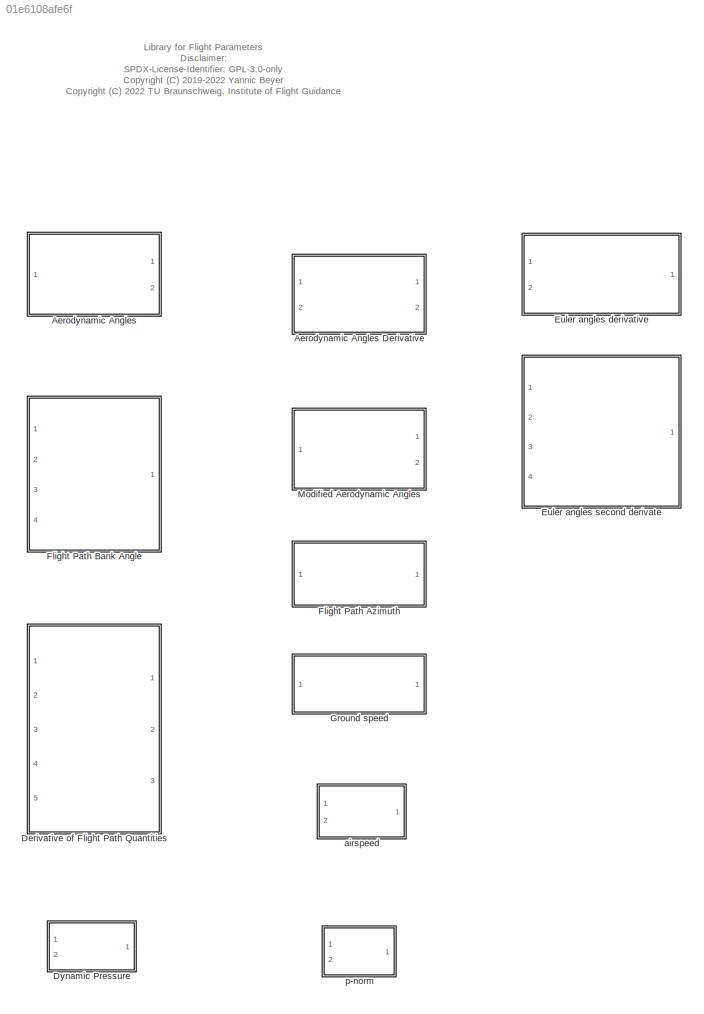
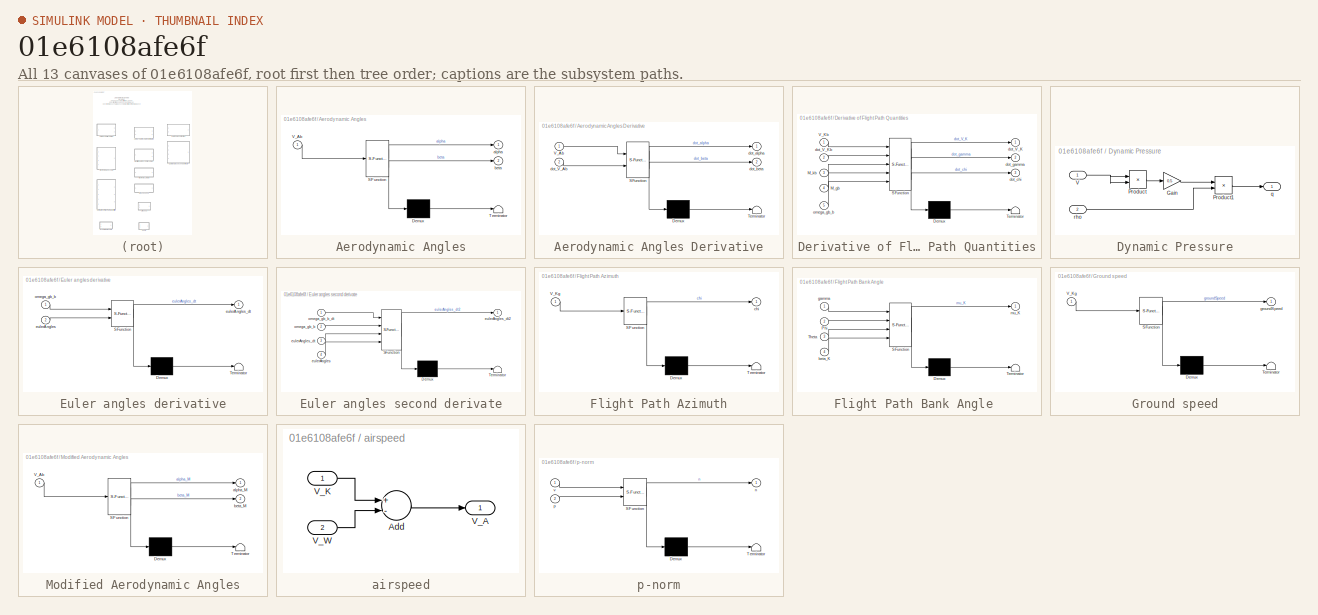
[diagram: thumbnail index - all 13 canvases of the model, root first then tree order]
MODEL slx_01e6108afe6f
KIND library
CONFIG AbsTol = auto
CONFIG EnableMultiTasking = off
CONFIG FixedStep = auto
CONFIG MaxStep = auto
CONFIG MinStep = auto
CONFIG RelTol = 1e-3
CONFIG SampleTimeConstraint = Unconstrained
CONFIG Solver = VariableStepAuto
CONFIG SolverName = VariableStepAuto
CONFIG StartTime = 0.0
CONFIG StopTime = 10.0
BLOCK [SubSystem] Aerodynamic Angles
  ErrorFcn = Stateflow.Translate.translate
  PermitHierarchicalResolution = ExplicitOnly
  Ports = [1, 2]
  RequestExecContextInheritance = off
  SFBlockType = MATLAB Function
  TreatAsAtomicUnit = on
BLOCK [SubSystem] Aerodynamic Angles Derivative
  ErrorFcn = Stateflow.Translate.translate
  PermitHierarchicalResolution = ExplicitOnly
  Ports = [2, 2]
  RequestExecContextInheritance = off
  SFBlockType = MATLAB Function
  TreatAsAtomicUnit = on
BLOCK [Demux] Aerodynamic Angles Derivative/ Demux 
  Outputs = 1
  Ports = [1, 1]
BLOCK [S-Function] Aerodynamic Angles Derivative/ SFunction 
  EnableBusSupport = off
  FunctionName = sf_sfun
  PortCounts = [2 3]
  Ports = [2, 3]
  SFcnIsStateOwnerBlock = off
  SFunctionDeploymentMode = off
  Tag = Stateflow S-Function flight_parameters_lib 1
BLOCK [Terminator] Aerodynamic Angles Derivative/ Terminator 
BLOCK [Inport] Aerodynamic Angles Derivative/V_Ab
  IconDisplay = Port number
BLOCK [Inport] Aerodynamic Angles Derivative/dot_V_Ab
  IconDisplay = Port number
  Port = 2
BLOCK [Outport] Aerodynamic Angles Derivative/dot_alpha
  IconDisplay = Port number
BLOCK [Outport] Aerodynamic Angles Derivative/dot_beta
  IconDisplay = Port number
  Port = 2
BLOCK [Demux] Aerodynamic Angles/ Demux 
  Outputs = 1
  Ports = [1, 1]
BLOCK [S-Function] Aerodynamic Angles/ SFunction 
  EnableBusSupport = off
  FunctionName = sf_sfun
  PortCounts = [1 3]
  Ports = [1, 3]
  SFcnIsStateOwnerBlock = off
  SFunctionDeploymentMode = off
  Tag = Stateflow S-Function flight_parameters_lib 21
BLOCK [Terminator] Aerodynamic Angles/ Terminator 
BLOCK [Inport] Aerodynamic Angles/V_Ab
  IconDisplay = Port number
BLOCK [Outport] Aerodynamic Angles/alpha
  IconDisplay = Port number
BLOCK [Outport] Aerodynamic Angles/beta
  IconDisplay = Port number
  Port = 2
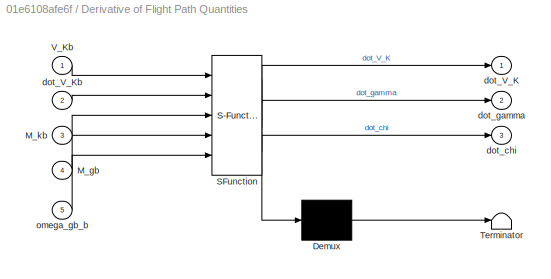
BLOCK [SubSystem] Derivative of Flight Path Quantities
  ErrorFcn = Stateflow.Translate.translate
  PermitHierarchicalResolution = ExplicitOnly
  Ports = [5, 3]
  RequestExecContextInheritance = off
  SFBlockType = MATLAB Function
  TreatAsAtomicUnit = on
BLOCK [Demux] Derivative of Flight Path Quantities/ Demux 
  Outputs = 1
  Ports = [1, 1]
BLOCK [S-Function] Derivative of Flight Path Quantities/ SFunction 
  EnableBusSupport = off
  FunctionName = sf_sfun
  PortCounts = [5 4]
  Ports = [5, 4]
  SFcnIsStateOwnerBlock = off
  SFunctionDeploymentMode = off
  Tag = Stateflow S-Function flight_parameters_lib 2
BLOCK [Terminator] Derivative of Flight Path Quantities/ Terminator 
BLOCK [Inport] Derivative of Flight Path Quantities/M_gb
  IconDisplay = Port number
  Port = 4
BLOCK [Inport] Derivative of Flight Path Quantities/M_kb
  IconDisplay = Port number
  Port = 3
BLOCK [Inport] Derivative of Flight Path Quantities/V_Kb
  IconDisplay = Port number
BLOCK [Outport] Derivative of Flight Path Quantities/dot_V_K
  IconDisplay = Port number
BLOCK [Inport] Derivative of Flight Path Quantities/dot_V_Kb
  IconDisplay = Port number
  Port = 2
BLOCK [Outport] Derivative of Flight Path Quantities/dot_chi
  IconDisplay = Port number
  Port = 3
BLOCK [Outport] Derivative of Flight Path Quantities/dot_gamma
  IconDisplay = Port number
  Port = 2
BLOCK [Inport] Derivative of Flight Path Quantities/omega_gb_b
  IconDisplay = Port number
  Port = 5
BLOCK [SubSystem] Dynamic Pressure
  Ports = [2, 1]
  RequestExecContextInheritance = off
BLOCK [Gain] Dynamic Pressure/Gain
  Gain = 0.5
  OutDataTypeStr = Inherit: Inherit via internal rule
  ParamDataTypeStr = Inherit: Inherit via internal rule
  SaturateOnIntegerOverflow = off
BLOCK [Product] Dynamic Pressure/Product
  InputSameDT = off
  OutDataTypeStr = Inherit: Inherit via internal rule
  Ports = [2, 1]
  RndMeth = Floor
  SaturateOnIntegerOverflow = off
BLOCK [Product] Dynamic Pressure/Product1
  InputSameDT = off
  OutDataTypeStr = Inherit: Inherit via internal rule
  Ports = [2, 1]
  RndMeth = Floor
  SaturateOnIntegerOverflow = off
BLOCK [Inport] Dynamic Pressure/V
  IconDisplay = Port number
BLOCK [Outport] Dynamic Pressure/q
  IconDisplay = Port number
BLOCK [Inport] Dynamic Pressure/rho
  IconDisplay = Port number
  Port = 2
BLOCK [SubSystem] Euler angles derivative
  ErrorFcn = Stateflow.Translate.translate
  PermitHierarchicalResolution = ExplicitOnly
  Ports = [2, 1]
  RequestExecContextInheritance = off
  SFBlockType = MATLAB Function
  TreatAsAtomicUnit = on
BLOCK [Demux] Euler angles derivative/ Demux 
  Outputs = 1
  Ports = [1, 1]
BLOCK [S-Function] Euler angles derivative/ SFunction 
  EnableBusSupport = off
  FunctionName = sf_sfun
  PortCounts = [2 2]
  Ports = [2, 2]
  SFcnIsStateOwnerBlock = off
  SFunctionDeploymentMode = off
  Tag = Stateflow S-Function flight_parameters_lib 7
BLOCK [Terminator] Euler angles derivative/ Terminator 
BLOCK [Inport] Euler angles derivative/eulerAngles
  IconDisplay = Port number
  Port = 2
BLOCK [Outport] Euler angles derivative/eulerAngles_dt
  IconDisplay = Port number
BLOCK [Inport] Euler angles derivative/omega_gb_b
  IconDisplay = Port number
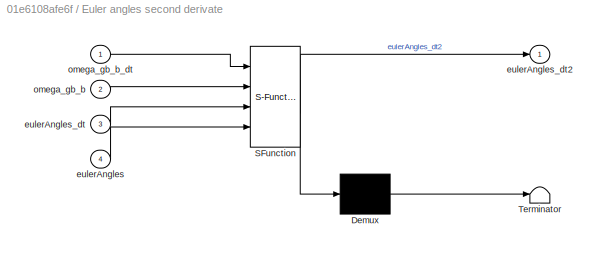
BLOCK [SubSystem] Euler angles second derivate
  ErrorFcn = Stateflow.Translate.translate
  PermitHierarchicalResolution = ExplicitOnly
  Ports = [4, 1]
  RequestExecContextInheritance = off
  SFBlockType = MATLAB Function
  TreatAsAtomicUnit = on
BLOCK [Demux] Euler angles second derivate/ Demux 
  Outputs = 1
  Ports = [1, 1]
BLOCK [S-Function] Euler angles second derivate/ SFunction 
  EnableBusSupport = off
  FunctionName = sf_sfun
  PortCounts = [4 2]
  Ports = [4, 2]
  SFcnIsStateOwnerBlock = off
  SFunctionDeploymentMode = off
  Tag = Stateflow S-Function flight_parameters_lib 8
BLOCK [Terminator] Euler angles second derivate/ Terminator 
BLOCK [Inport] Euler angles second derivate/eulerAngles
  IconDisplay = Port number
  Port = 4
BLOCK [Inport] Euler angles second derivate/eulerAngles_dt
  IconDisplay = Port number
  Port = 3
BLOCK [Outport] Euler angles second derivate/eulerAngles_dt2
  IconDisplay = Port number
BLOCK [Inport] Euler angles second derivate/omega_gb_b
  IconDisplay = Port number
  Port = 2
BLOCK [Inport] Euler angles second derivate/omega_gb_b_dt
  IconDisplay = Port number
BLOCK [SubSystem] Flight Path Azimuth
  ErrorFcn = Stateflow.Translate.translate
  PermitHierarchicalResolution = ExplicitOnly
  Ports = [1, 1]
  RequestExecContextInheritance = off
  SFBlockType = MATLAB Function
  TreatAsAtomicUnit = on
BLOCK [Demux] Flight Path Azimuth/ Demux 
  Outputs = 1
  Ports = [1, 1]
BLOCK [S-Function] Flight Path Azimuth/ SFunction 
  EnableBusSupport = off
  FunctionName = sf_sfun
  PortCounts = [1 2]
  Ports = [1, 2]
  SFcnIsStateOwnerBlock = off
  SFunctionDeploymentMode = off
  Tag = Stateflow S-Function flight_parameters_lib 5
BLOCK [Terminator] Flight Path Azimuth/ Terminator 
BLOCK [Inport] Flight Path Azimuth/V_Kg
  IconDisplay = Port number
BLOCK [Outport] Flight Path Azimuth/chi
  IconDisplay = Port number
BLOCK [SubSystem] Flight Path Bank Angle 
  ErrorFcn = Stateflow.Translate.translate
  PermitHierarchicalResolution = ExplicitOnly
  Ports = [4, 1]
  RequestExecContextInheritance = off
  SFBlockType = MATLAB Function
  TreatAsAtomicUnit = on
BLOCK [Demux] Flight Path Bank Angle / Demux 
  Outputs = 1
  Ports = [1, 1]
BLOCK [S-Function] Flight Path Bank Angle / SFunction 
  EnableBusSupport = off
  FunctionName = sf_sfun
  PortCounts = [4 2]
  Ports = [4, 2]
  SFcnIsStateOwnerBlock = off
  SFunctionDeploymentMode = off
  Tag = Stateflow S-Function flight_parameters_lib 23
BLOCK [Terminator] Flight Path Bank Angle / Terminator 
BLOCK [Inport] Flight Path Bank Angle /Phi
  IconDisplay = Port number
  Port = 2
BLOCK [Inport] Flight Path Bank Angle /Theta
  IconDisplay = Port number
  Port = 3
BLOCK [Inport] Flight Path Bank Angle /beta_K
  IconDisplay = Port number
  Port = 4
BLOCK [Inport] Flight Path Bank Angle /gamma
  IconDisplay = Port number
BLOCK [Outport] Flight Path Bank Angle /mu_K
  IconDisplay = Port number
BLOCK [SubSystem] Ground speed
  ErrorFcn = Stateflow.Translate.translate
  PermitHierarchicalResolution = ExplicitOnly
  Ports = [1, 1]
  RequestExecContextInheritance = off
  SFBlockType = MATLAB Function
  TreatAsAtomicUnit = on
BLOCK [Demux] Ground speed/ Demux 
  Outputs = 1
  Ports = [1, 1]
BLOCK [S-Function] Ground speed/ SFunction 
  EnableBusSupport = off
  FunctionName = sf_sfun
  PortCounts = [1 2]
  Ports = [1, 2]
  SFcnIsStateOwnerBlock = off
  SFunctionDeploymentMode = off
  Tag = Stateflow S-Function flight_parameters_lib 6
BLOCK [Terminator] Ground speed/ Terminator 
BLOCK [Inport] Ground speed/V_Kg
  IconDisplay = Port number
BLOCK [Outport] Ground speed/groundSpeed
  IconDisplay = Port number
BLOCK [SubSystem] Modified Aerodynamic Angles
  ErrorFcn = Stateflow.Translate.translate
  PermitHierarchicalResolution = ExplicitOnly
  Ports = [1, 2]
  RequestExecContextInheritance = off
  SFBlockType = MATLAB Function
  TreatAsAtomicUnit = on
BLOCK [Demux] Modified Aerodynamic Angles/ Demux 
  Outputs = 1
  Ports = [1, 1]
BLOCK [S-Function] Modified Aerodynamic Angles/ SFunction 
  EnableBusSupport = off
  FunctionName = sf_sfun
  PortCounts = [1 3]
  Ports = [1, 3]
  SFcnIsStateOwnerBlock = off
  SFunctionDeploymentMode = off
  Tag = Stateflow S-Function flight_parameters_lib 4
BLOCK [Terminator] Modified Aerodynamic Angles/ Terminator 
BLOCK [Inport] Modified Aerodynamic Angles/V_Ab
  IconDisplay = Port number
BLOCK [Outport] Modified Aerodynamic Angles/alpha_M
  IconDisplay = Port number
BLOCK [Outport] Modified Aerodynamic Angles/beta_M
  IconDisplay = Port number
  Port = 2
BLOCK [SubSystem] airspeed
  Ports = [2, 1]
  RequestExecContextInheritance = off
BLOCK [Sum] airspeed/Add
  InputSameDT = off
  Inputs = +-
  OutDataTypeStr = Inherit: Inherit via internal rule
  Ports = [2, 1]
  SaturateOnIntegerOverflow = off
BLOCK [Outport] airspeed/V_A
  IconDisplay = Port number
BLOCK [Inport] airspeed/V_K
  IconDisplay = Port number
BLOCK [Inport] airspeed/V_W
  IconDisplay = Port number
  Port = 2
BLOCK [SubSystem] p-norm
  ErrorFcn = Stateflow.Translate.translate
  PermitHierarchicalResolution = ExplicitOnly
  Ports = [2, 1]
  RequestExecContextInheritance = off
  SFBlockType = MATLAB Function
  TreatAsAtomicUnit = on
BLOCK [Demux] p-norm/ Demux 
  Outputs = 1
  Ports = [1, 1]
BLOCK [S-Function] p-norm/ SFunction 
  EnableBusSupport = off
  FunctionName = sf_sfun
  PortCounts = [2 2]
  Ports = [2, 2]
  SFcnIsStateOwnerBlock = off
  SFunctionDeploymentMode = off
  Tag = Stateflow S-Function flight_parameters_lib 3
BLOCK [Terminator] p-norm/ Terminator 
BLOCK [Outport] p-norm/n
  IconDisplay = Port number
BLOCK [Inport] p-norm/p
  IconDisplay = Port number
  Port = 2
BLOCK [Inport] p-norm/v
  IconDisplay = Port number
ANNOTATION (root): Library for Flight Parameters Disclaimer: SPDX-License-Identifier: GPL-3.0-only <copyright redacted>
LINE Dynamic Pressure/Gain:1 -> Dynamic Pressure/Product1:1
LINE Dynamic Pressure/Product1:1 -> Dynamic Pressure/q:1
LINE Dynamic Pressure/Product:1 -> Dynamic Pressure/Gain:1
NET Dynamic Pressure/V:1 -> Dynamic Pressure/Product:1, Dynamic Pressure/Product:2
LINE Dynamic Pressure/rho:1 -> Dynamic Pressure/Product1:2
LINE airspeed/Add:1 -> airspeed/V_A:1
LINE airspeed/V_K:1 -> airspeed/Add:1
LINE airspeed/V_W:1 -> airspeed/Add:2
note: NET lines group one-source signal fan-out (src -> all destinations, sorted); 1:1 wires keep LINE
CHART Aerodynamic Angles Derivative states=1 transitions=1
  STATE_LABEL 'eML_blk_kernel()'
  STATE_LABEL 'SCRIPT:\nfunction [ dot_alpha, dot_beta ] = fcn( V_Ab, dot_V_Ab ) %#codegen\n[ dot_alpha, dot_beta ] = aeroAnglesDerivative( V_Ab, dot_V_Ab );'
CHART Derivative of Flight Path Quantities states=1 transitions=1
  STATE_LABEL 'eML_blk_kernel()'
  STATE_LABEL 'SCRIPT:\nfunction [ dot_V_K, dot_gamma, dot_chi ] = fcn( ...\n    V_Kb, dot_V_Kb, M_kb, M_gb, omega_gb_b ) %#codegen\n[ dot_V_K, dot_gamma, dot_chi ] = flightPathDerivative( ...\n    V_Kb, dot_V_Kb, M_kb, M_gb, omega_gb_b );'
CHART p-norm states=1 transitions=1
  STATE_LABEL 'eML_blk_kernel()'
  STATE_LABEL 'SCRIPT:\n% norm computes the p-norm of a vector v \n%   https://de.mathworks.com/help/matlab/ref/norm.html\n% *************************************************************************\nfunction n = fcn(v,p) %#codegen\nn = norm(v,p);\n'
CHART Modified Aerodynamic Angles states=1 transitions=1
  STATE_LABEL 'eML_blk_kernel()'
  STATE_LABEL 'SCRIPT:\nfunction [ alpha_M, beta_M ] = fcn( V_Ab ) %#codegen\n[ alpha_M, beta_M ] = aeroAnglesMod( V_Ab );'
CHART Flight Path Azimuth states=1 transitions=1
  STATE_LABEL 'eML_blk_kernel()'
  STATE_LABEL 'SCRIPT:\nfunction chi = fcn( V_Kg ) %#codegen\nchi = flightPathAzimuth( V_Kg );\nend'
CHART Ground speed states=1 transitions=1
  STATE_LABEL 'eML_blk_kernel()'
  STATE_LABEL 'SCRIPT:\n% groundSpeed computes the absolute velocity of a point relative to \n%   the ground parallel to the horizontal plane.\n% \n% Inputs:\n%   V_Kg            flight path velocity represented in g frame (3xn vector\n%                   where n is the number of flight path velocity vectors),\n%                   in m/s\n% \n% Outputs:\n%   groundSpeed     ground speed (scalar or vector, depending on siz...<+487ch>'
CHART Euler angles derivative states=1 transitions=1
  STATE_LABEL 'eML_blk_kernel()'
  STATE_LABEL 'SCRIPT:\nfunction eulerAngles_dt = fcn( omega_gb_b, eulerAngles ) %#codegen\n    eulerAngles_dt = eulerDerivFromOmega( omega_gb_b, eulerAngles );\nend\n\n\n'
CHART Euler angles second derivate states=1 transitions=1
  STATE_LABEL 'eML_blk_kernel()'
  STATE_LABEL 'SCRIPT:\nfunction eulerAngles_dt2 = fcn( omega_gb_b_dt, ...\n    omega_gb_b, eulerAngles_dt, eulerAngles ) %#codegen\n    eulerAngles_dt2 = eulerDeriv2FromOmega( omega_gb_b_dt, ...\n        omega_gb_b, eulerAngles_dt, eulerAngles );\nend'
CHART Aerodynamic Angles states=1 transitions=1
  STATE_LABEL 'eML_blk_kernel()'
  STATE_LABEL 'SCRIPT:\nfunction [ alpha, beta ] = fcn( V_Ab ) %#codegen\n[ alpha, beta ] = aeroAngles( V_Ab );'
CHART Flight Path Bank Angle
 states=1 transitions=1
  STATE_LABEL 'eML_blk_kernel()'
  STATE_LABEL 'SCRIPT:\nfunction mu_K = fcn( gamma, Phi, Theta, beta_K ) %#codegen\nmu_K = flightPathBankAngle( gamma, Phi, Theta, beta_K );'
